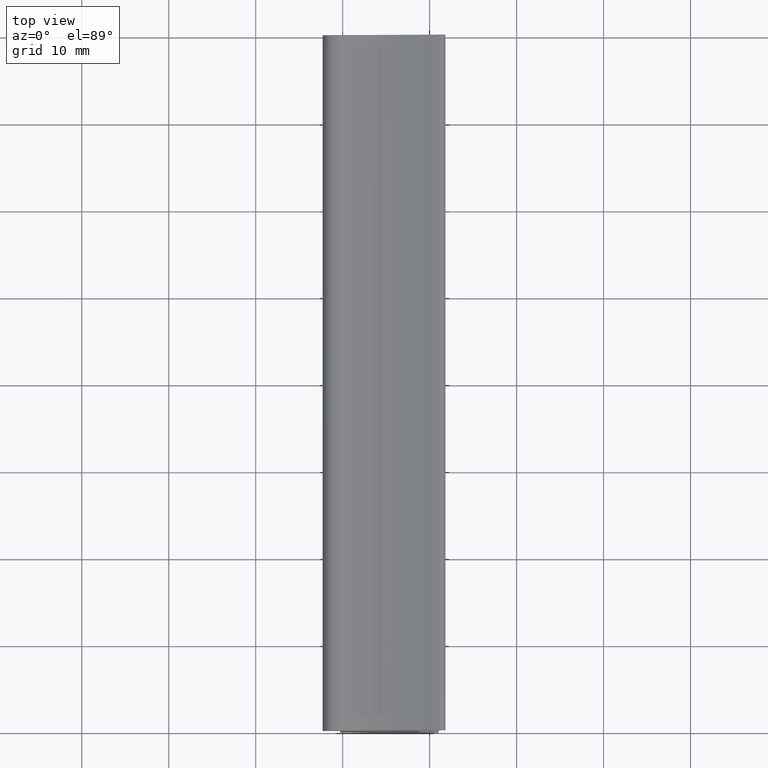
[diagram: clean part render]
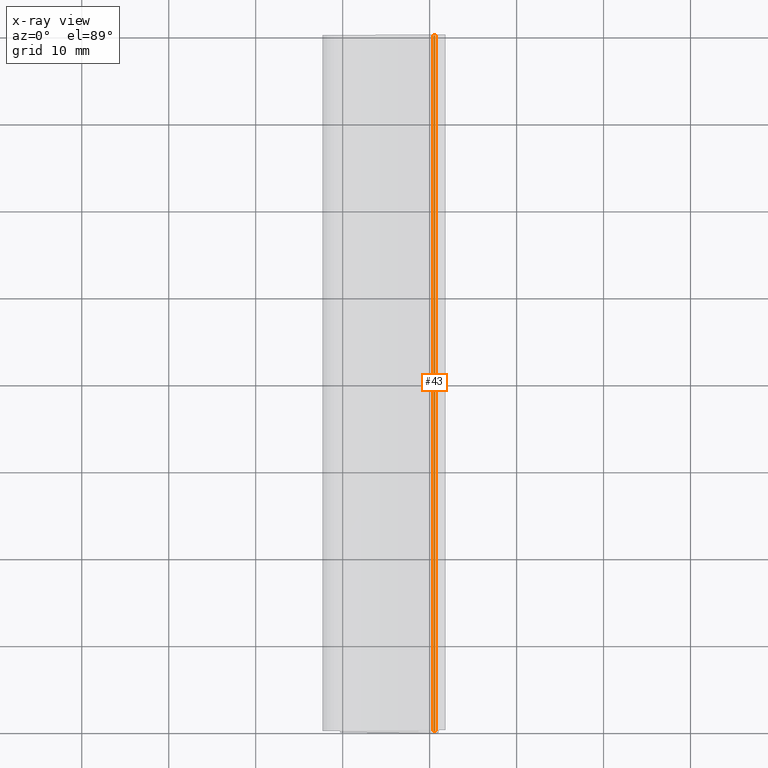
[diagram: x-ray — body ghosted, one internal face saturated and labeled with its STEP entity id]
A machine part, top view, then the same camera in x-ray: the body is ghosted and one INTERNAL B-rep face — a face not visible from any outside direction — is saturated and labeled: STEP entity #43.
In plain terms, the highlighted cylindrical surface (edge-blend (fillet) strip) has radius 0.4 mm, axis along (0, 1, 0).
Its self-contained STEP definition (entity closure, byte-faithful):
#43 = ADVANCED_FACE ( 'NONE', ( #256 ), #318, .T. ) ;
#145 = VECTOR ( 'NONE', #1659, 1000.000000000000000 ) ;
#147 = LINE ( 'NONE', #1630, #145 ) ;
#256 = FACE_OUTER_BOUND ( 'NONE', #1798, .T. ) ;
#318 = CYLINDRICAL_SURFACE ( 'NONE', #378, 0.3999999999999993000 ) ;
#365 = AXIS2_PLACEMENT_3D ( 'NONE', #1428, #1438, #1439 ) ;
#378 = AXIS2_PLACEMENT_3D ( 'NONE', #880, #850, #851 ) ;
#386 = AXIS2_PLACEMENT_3D ( 'NONE', #1401, #1411, #1412 ) ;
#577 = EDGE_CURVE ( 'NONE', #1136, #1126, #147, .T. ) ;
#600 = EDGE_CURVE ( 'NONE', #1126, #1186, #1952, .T. ) ;
#612 = EDGE_CURVE ( 'NONE', #1161, #1136, #1953, .T. ) ;
#731 = ORIENTED_EDGE ( 'NONE', *, *, #577, .T. ) ;
#743 = ORIENTED_EDGE ( 'NONE', *, *, #600, .T. ) ;
#759 = ORIENTED_EDGE ( 'NONE', *, *, #612, .T. ) ;
#850 = DIRECTION ( 'NONE',  ( 0.0000000000000000000, 1.000000000000000000, 0.0000000000000000000 ) ) ;
#851 = DIRECTION ( 'NONE',  ( 0.0000000000000000000, 0.0000000000000000000, 1.000000000000000000 ) ) ;
#880 = CARTESIAN_POINT ( 'NONE',  ( 0.6418131004275050600, 80.00000000000000000, 14.08563820295970000 ) ) ;
#1126 = VERTEX_POINT ( 'NONE', #1726 ) ;
#1136 = VERTEX_POINT ( 'NONE', #1706 ) ;
#1161 = VERTEX_POINT ( 'NONE', #1668 ) ;
#1186 = VERTEX_POINT ( 'NONE', #1618 ) ;
#1401 = CARTESIAN_POINT ( 'NONE',  ( 0.6418131004275050600, 80.00000000000000000, 14.08563820295970000 ) ) ;
#1411 = DIRECTION ( 'NONE',  ( -0.0000000000000000000, -1.000000000000000000, -0.0000000000000000000 ) ) ;
#1412 = DIRECTION ( 'NONE',  ( 0.0000000000000000000, 0.0000000000000000000, 1.000000000000000000 ) ) ;
#1428 = CARTESIAN_POINT ( 'NONE',  ( 0.6418131004275050600, 0.0000000000000000000, 14.08563820295970000 ) ) ;
#1438 = DIRECTION ( 'NONE',  ( 0.0000000000000000000, 1.000000000000000000, 0.0000000000000000000 ) ) ;
#1439 = DIRECTION ( 'NONE',  ( 0.0000000000000000000, 0.0000000000000000000, 1.000000000000000000 ) ) ;
#1618 = CARTESIAN_POINT ( 'NONE',  ( 0.4230686110178487600, 80.00000000000000000, 14.42052751057180900 ) ) ;
#1630 = CARTESIAN_POINT ( 'NONE',  ( 0.6418131004275050600, 80.00000000000000000, 14.48563820295970000 ) ) ;
#1659 = DIRECTION ( 'NONE',  ( 0.0000000000000000000, 1.000000000000000000, 0.0000000000000000000 ) ) ;
#1668 = CARTESIAN_POINT ( 'NONE',  ( 0.4230686110178487600, 0.0000000000000000000, 14.42052751057180900 ) ) ;
#1693 = DIRECTION ( 'NONE',  ( -0.0000000000000000000, -1.000000000000000000, -0.0000000000000000000 ) ) ;
#1697 = CARTESIAN_POINT ( 'NONE',  ( 0.4230686110188235900, 80.00000000000000000, 14.42052751057245900 ) ) ;
#1706 = CARTESIAN_POINT ( 'NONE',  ( 0.6418131004275050600, 0.0000000000000000000, 14.48563820295970000 ) ) ;
#1726 = CARTESIAN_POINT ( 'NONE',  ( 0.6418131004275050600, 80.00000000000000000, 14.48563820295970000 ) ) ;
#1798 = EDGE_LOOP ( 'NONE', ( #759, #731, #743, #1848 ) ) ;
#1848 = ORIENTED_EDGE ( 'NONE', *, *, #2020, .T. ) ;
#1952 = CIRCLE ( 'NONE', #386, 0.3999999999999993000 ) ;
#1953 = CIRCLE ( 'NONE', #365, 0.3999999999999993000 ) ;
#2003 = LINE ( 'NONE', #1697, #2004 ) ;
#2004 = VECTOR ( 'NONE', #1693, 1000.000000000000000 ) ;
#2020 = EDGE_CURVE ( 'NONE', #1186, #1161, #2003, .T. ) ;